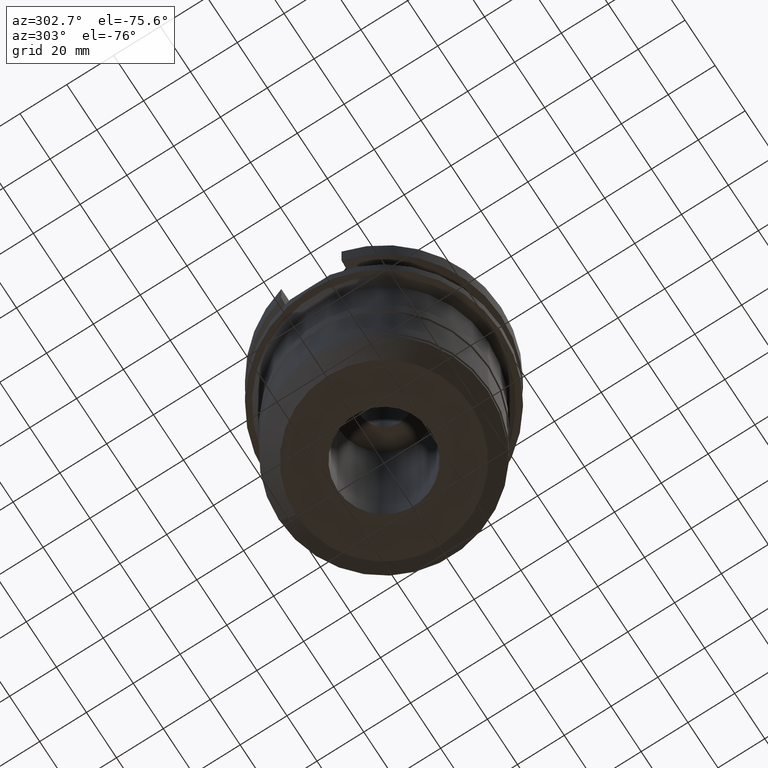
[diagram: clean part render]
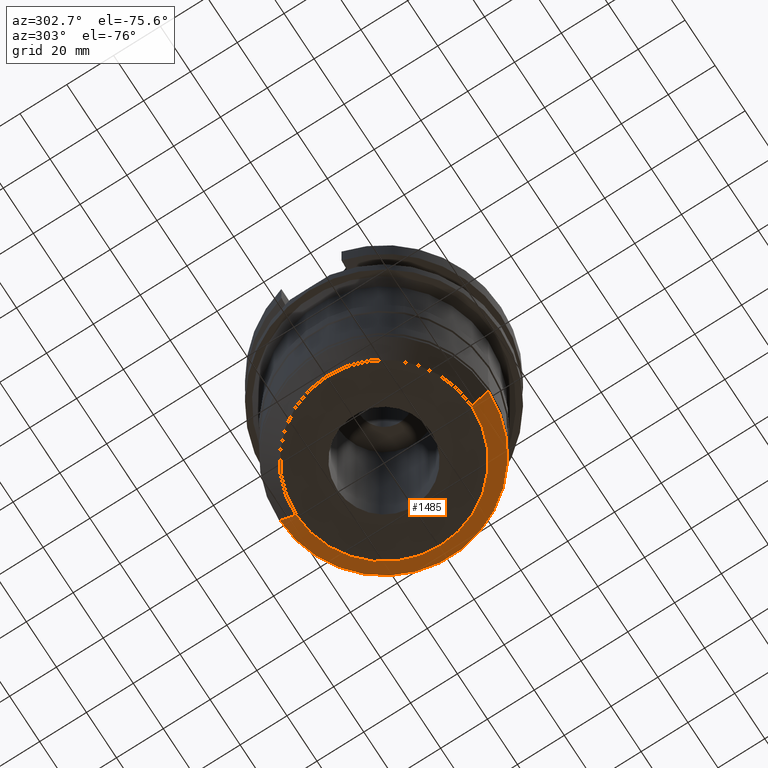
[diagram: same view with one face highlighted and labeled with its STEP entity id]
A machine part, auxiliary view. The second image highlights one B-rep face of the part: STEP entity #1485.
In plain terms, the highlighted conical surface has half-angle 45 deg.
Its self-contained STEP definition (entity closure, byte-faithful):
#154=CARTESIAN_POINT('',(0.E0,0.E0,-1.2E2));
#155=DIRECTION('',(0.E0,0.E0,1.E0));
#156=DIRECTION('',(0.E0,-1.E0,0.E0));
#157=AXIS2_PLACEMENT_3D('',#154,#155,#156);
#186=DIRECTION('',(0.E0,-7.071067811866E-1,-7.071067811865E-1));
#187=VECTOR('',#186,9.899494936612E0);
#188=CARTESIAN_POINT('',(0.E0,4.45E1,-1.13E2));
#189=LINE('',#188,#187);
#193=CARTESIAN_POINT('',(0.E0,0.E0,-1.13E2));
#194=DIRECTION('',(0.E0,0.E0,1.E0));
#195=DIRECTION('',(0.E0,-1.E0,0.E0));
#196=AXIS2_PLACEMENT_3D('',#193,#194,#195);
#209=DIRECTION('',(0.E0,7.071067811866E-1,-7.071067811865E-1));
#210=VECTOR('',#209,9.899494936612E0);
#211=CARTESIAN_POINT('',(0.E0,-4.45E1,-1.13E2));
#212=LINE('',#211,#210);
#1168=CARTESIAN_POINT('',(0.E0,-3.75E1,-1.2E2));
#1169=CARTESIAN_POINT('',(0.E0,3.75E1,-1.2E2));
#1170=VERTEX_POINT('',#1168);
#1171=VERTEX_POINT('',#1169);
#1172=CARTESIAN_POINT('',(0.E0,4.45E1,-1.13E2));
#1173=VERTEX_POINT('',#1172);
#1174=CARTESIAN_POINT('',(0.E0,-4.45E1,-1.13E2));
#1175=VERTEX_POINT('',#1174);
#1471=CARTESIAN_POINT('',(0.E0,0.E0,-1.165E2));
#1472=DIRECTION('',(0.E0,0.E0,1.E0));
#1473=DIRECTION('',(0.E0,1.E0,0.E0));
#1474=AXIS2_PLACEMENT_3D('',#1471,#1472,#1473);
#1475=CONICAL_SURFACE('',#1474,4.1E1,4.5E1);
#1477=ORIENTED_EDGE('',*,*,#1476,.T.);
#1478=ORIENTED_EDGE('',*,*,#1460,.F.);
#1480=ORIENTED_EDGE('',*,*,#1479,.F.);
#1482=ORIENTED_EDGE('',*,*,#1481,.T.);
#1483=EDGE_LOOP('',(#1477,#1478,#1480,#1482));
#1484=FACE_OUTER_BOUND('',#1483,.F.);
#158=CIRCLE('',#157,3.75E1);
#197=CIRCLE('',#196,4.45E1);
#1460=EDGE_CURVE('',#1170,#1171,#158,.T.);
#1476=EDGE_CURVE('',#1173,#1171,#189,.T.);
#1479=EDGE_CURVE('',#1175,#1170,#212,.T.);
#1481=EDGE_CURVE('',#1175,#1173,#197,.T.);
#1485=ADVANCED_FACE('',(#1484),#1475,.T.);